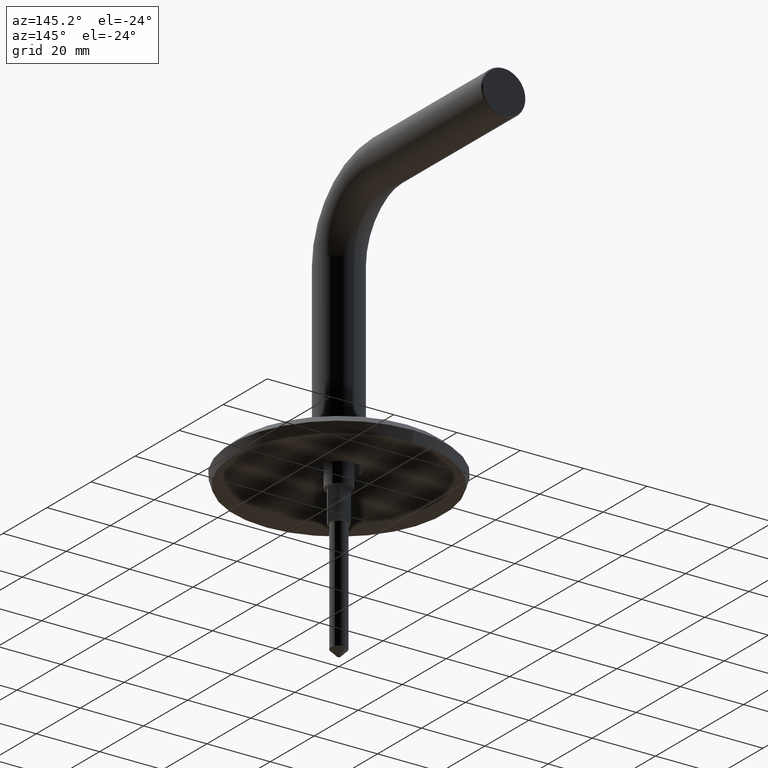
[diagram: clean part render]
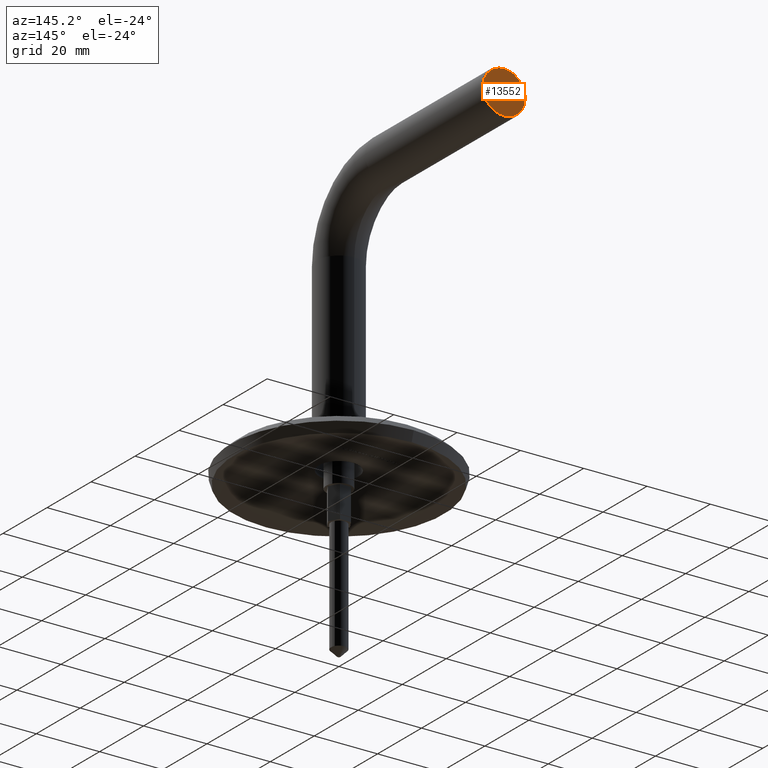
[diagram: same view with one face highlighted and labeled with its STEP entity id]
A machine part, auxiliary view. The second image highlights one B-rep face of the part: STEP entity #13552.
In plain terms, the highlighted planar face has unit normal (0, 1, -0).
Its self-contained STEP definition (entity closure, byte-faithful):
#196 = DIRECTION ( 'NONE',  ( 0.000000000000000000, 0.000000000000000000, 1.000000000000000000 ) ) ;
#518 = EDGE_CURVE ( 'NONE', #12094, #1159, #9467, .T. ) ;
#1159 = VERTEX_POINT ( 'NONE', #11574 ) ;
#2205 = EDGE_CURVE ( 'NONE', #1159, #12094, #3213, .T. ) ;
#3213 = CIRCLE ( 'NONE', #9596, 6.699999999999997513 ) ;
#5411 = AXIS2_PLACEMENT_3D ( 'NONE', #9840, #5666, #10034 ) ;
#5666 = DIRECTION ( 'NONE',  ( 0.000000000000000000, 1.000000000000000000, -1.311299159921008727E-16 ) ) ;
#5669 = DIRECTION ( 'NONE',  ( 0.000000000000000000, 1.000000000000000000, -1.311299159921008727E-16 ) ) ;
#6180 = EDGE_LOOP ( 'NONE', ( #10912, #9783 ) ) ;
#9456 = CARTESIAN_POINT ( 'NONE',  ( 0.000000000000000000, 74.99999999999997158, 75.00000000000001421 ) ) ;
#9467 = CIRCLE ( 'NONE', #5411, 6.699999999999997513 ) ;
#9596 = AXIS2_PLACEMENT_3D ( 'NONE', #9896, #5669, #196 ) ;
#9783 = ORIENTED_EDGE ( 'NONE', *, *, #2205, .T. ) ;
#9840 = CARTESIAN_POINT ( 'NONE',  ( 0.000000000000000000, 74.99999999999997158, 75.00000000000001421 ) ) ;
#9896 = CARTESIAN_POINT ( 'NONE',  ( 0.000000000000000000, 74.99999999999997158, 75.00000000000001421 ) ) ;
#10034 = DIRECTION ( 'NONE',  ( 0.000000000000000000, 0.000000000000000000, 1.000000000000000000 ) ) ;
#10912 = ORIENTED_EDGE ( 'NONE', *, *, #518, .T. ) ;
#11446 = PLANE ( 'NONE',  #13271 ) ;
#11574 = CARTESIAN_POINT ( 'NONE',  ( 8.388830574159365932E-16, 74.99999999999997158, 81.70000000000000284 ) ) ;
#11579 = DIRECTION ( 'NONE',  ( 1.000000000000000000, 0.000000000000000000, 0.000000000000000000 ) ) ;
#11852 = CARTESIAN_POINT ( 'NONE',  ( 0.000000000000000000, 74.99999999999997158, 68.30000000000001137 ) ) ;
#12094 = VERTEX_POINT ( 'NONE', #11852 ) ;
#12639 = DIRECTION ( 'NONE',  ( 0.000000000000000000, 1.000000000000000000, -1.311299159921008727E-16 ) ) ;
#13271 = AXIS2_PLACEMENT_3D ( 'NONE', #9456, #12639, #11579 ) ;
#13398 = FACE_OUTER_BOUND ( 'NONE', #6180, .T. ) ;
#13552 = ADVANCED_FACE ( 'NONE', ( #13398 ), #11446, .T. ) ;